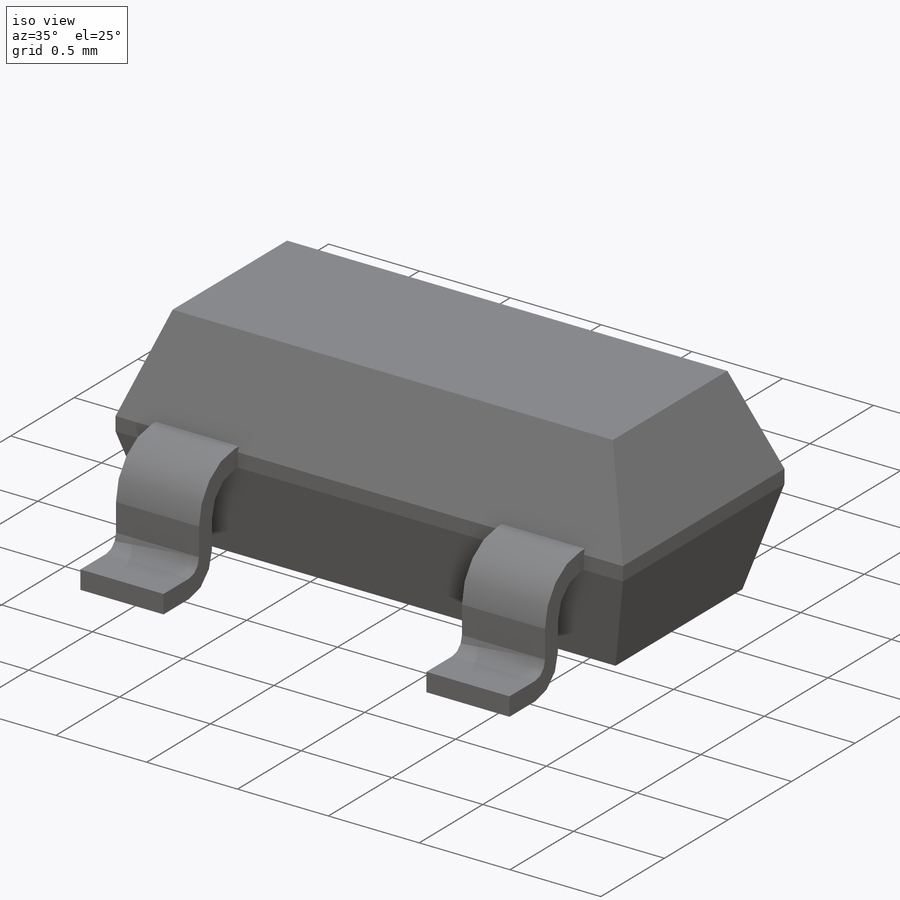
[diagram: iso view]
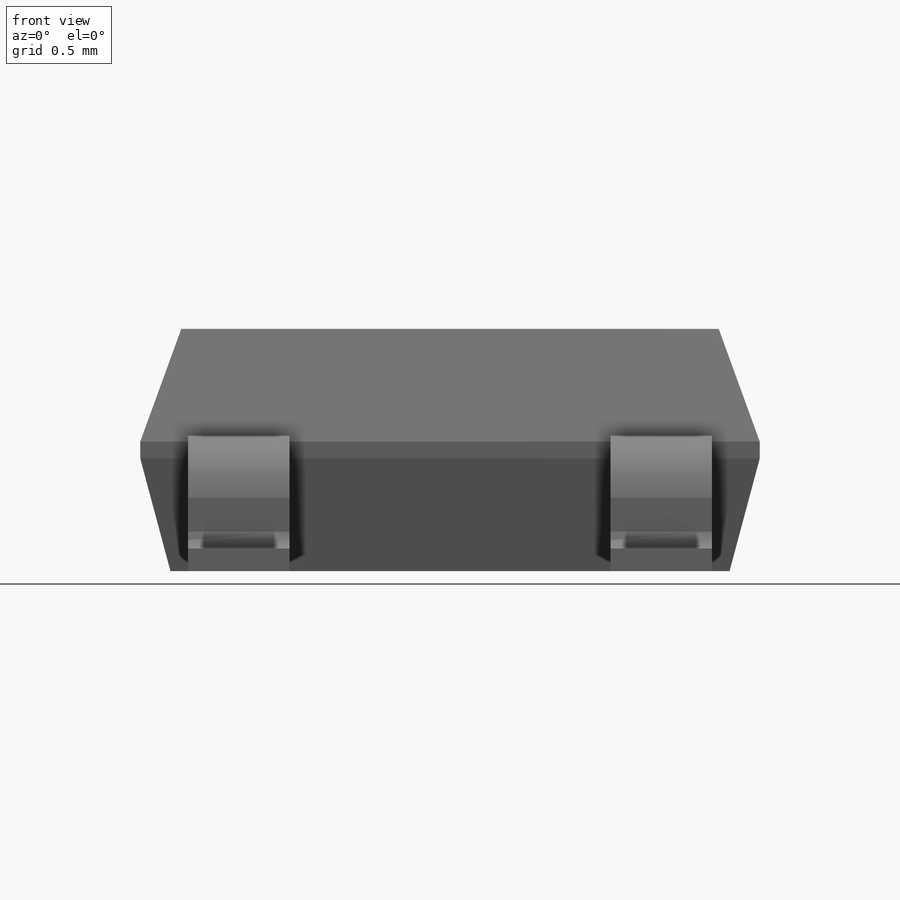
[diagram: front view]
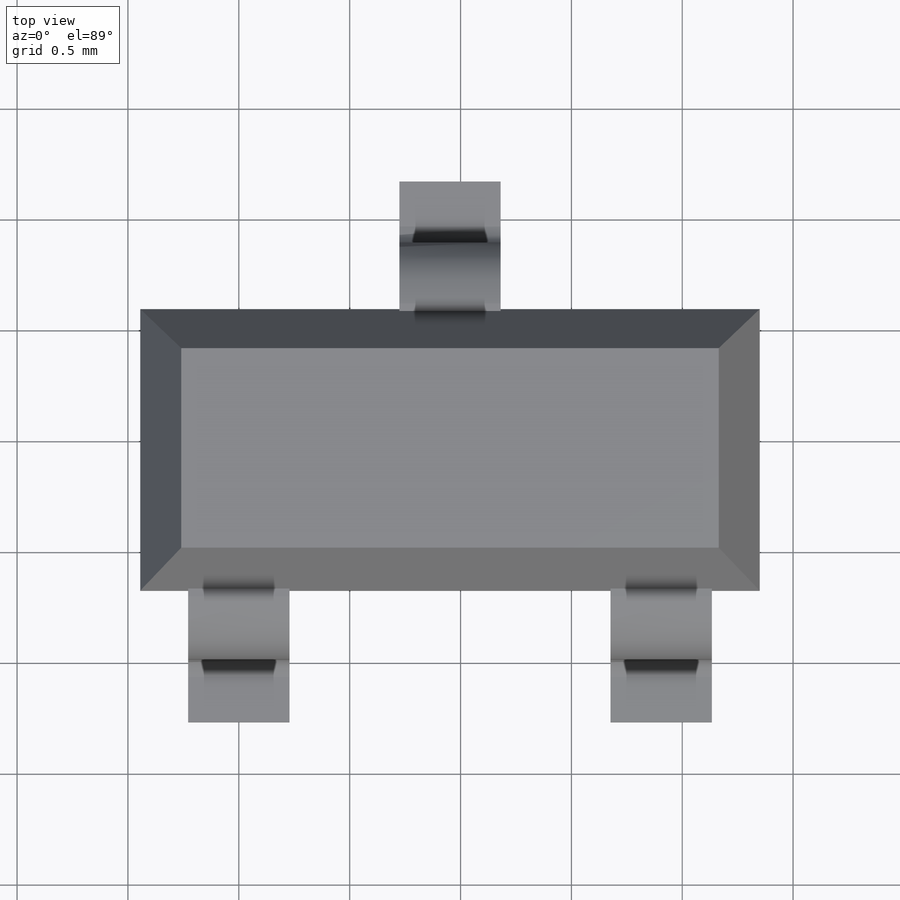
[diagram: top view]
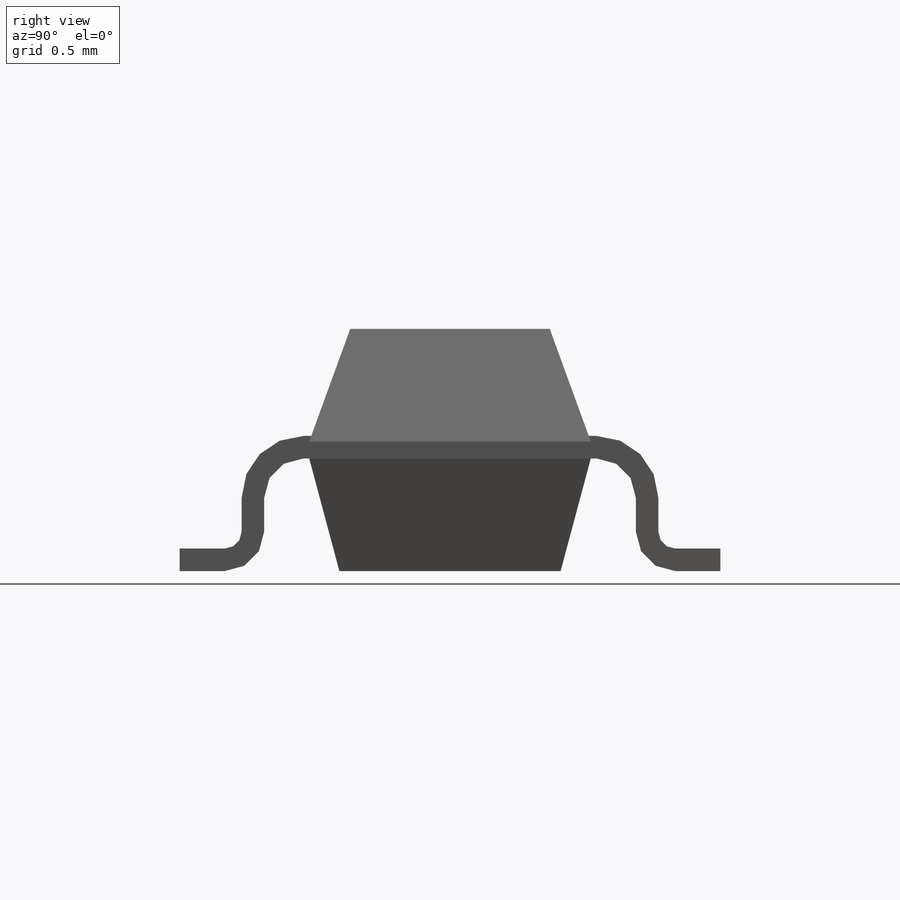
[diagram: right view]
SOLIDWORKS PART (.sldprt)
format: sldprt  version: not decoded by parser v0  size: 225,792 bytes
history: native  units: mm
features: sketch x4, chamfer x2, pattern_linear x2, material x1, extrude x1, plane x1 (+12 scaffold rows collapsed)
feature tree (23):
  scaffold x12  (default folders/planes/origin — collapsed)
  material  "Material <not specified>"
  sketch  "Sketch2"  dims[D1=2.794mm D2=1.27mm D3=0.3175mm D4=0.4445mm]
  extrude  "Base-Extrude"  Depth=1.0922mm
  chamfer  "Chamfer1"  Distance=0.508mm Angle=20deg
  chamfer  "Chamfer2"  Distance=0.508mm Angle=15deg
  sketch  "Sketch3"  dims[c1.D1=0.1778mm c1.D2=0.381mm c1.D3=0.5207mm c2.D2=0.381mm c2.D3=0.5842mm c2.D1=0.4572mm c2.D5=0.1016mm c2.D6=1.0mm c2.D7=5.0mm]
  pattern_linear  "LPattern1"  Count1=2 Count2=1 Spacing1=1.905mm Spacing2=50mm
  plane  "Plane1"  Offset=0.9525mm
  sketch  "Sketch4"  dims[c1.D3=0.1778mm c1.D1=0.381mm c1.D2=0.5842mm c2.D3=0.5842mm c2.D2=0.5842mm]
  pattern_linear  "Boss-Extrude-Thin3"  Spacing1=0.4572mm Spacing2=0.1016mm  [1 undecoded]
  sketch  "Component_Outline"
decode coverage: 8 of 9 modeling features carry decoded parameters
note: 1 parameter value undecoded
note: suppression state not decoded; provenance and decode notes live in map.json
